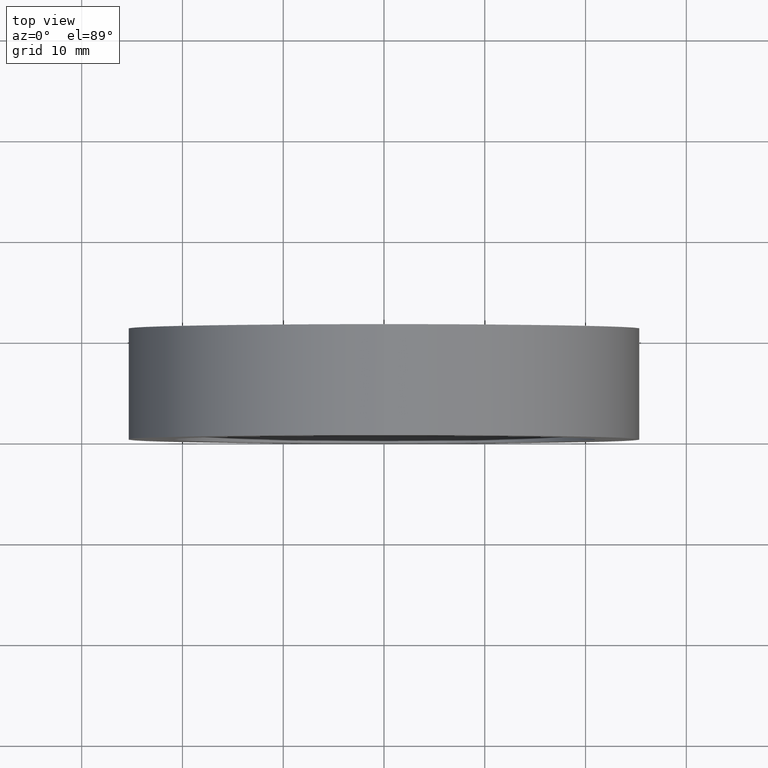
[diagram: clean part render]
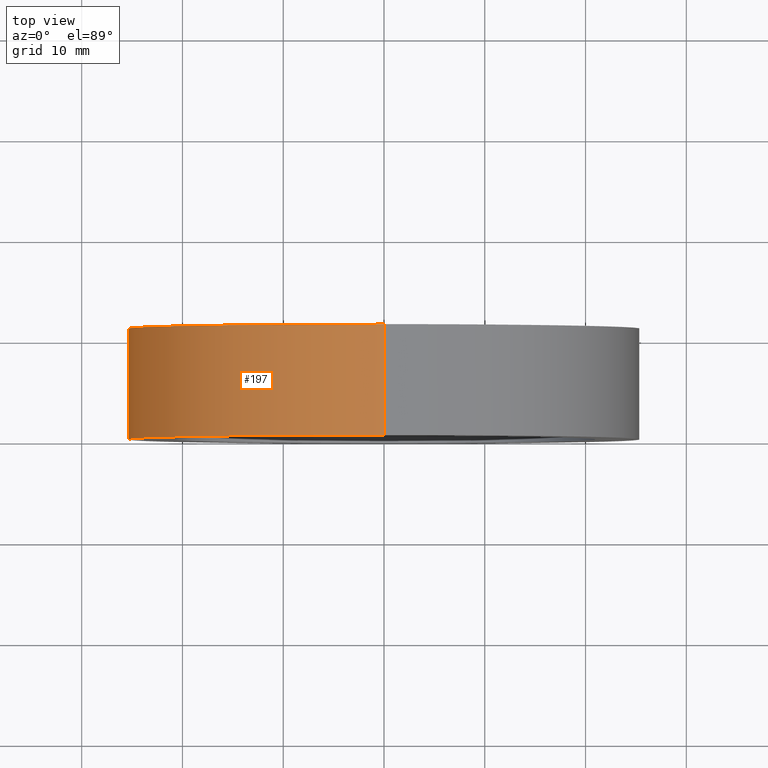
[diagram: same view with one face highlighted and labeled with its STEP entity id]
A machine part, top view. The second image highlights one B-rep face of the part: STEP entity #197.
In plain terms, the highlighted cylindrical surface (partial cylindrical patch) has radius 25.4 mm, axis along (-0, -1, -0).
Its self-contained STEP definition (entity closure, byte-faithful):
#7 = CARTESIAN_POINT ( 'NONE',  ( 3.110602869834276865E-15, 0.000000000000000000, 25.39999999999999858 ) ) ;
#8 = EDGE_CURVE ( 'NONE', #88, #152, #375, .T. ) ;
#16 = EDGE_LOOP ( 'NONE', ( #196, #164, #145, #95 ) ) ;
#30 = EDGE_CURVE ( 'NONE', #66, #152, #42, .T. ) ;
#32 = CARTESIAN_POINT ( 'NONE',  ( 0.000000000000000000, 10.99999999999999645, 0.000000000000000000 ) ) ;
#42 = CIRCLE ( 'NONE', #147, 25.39999999999999503 ) ;
#43 = CARTESIAN_POINT ( 'NONE',  ( 0.000000000000000000, 0.000000000000000000, 0.000000000000000000 ) ) ;
#62 = EDGE_CURVE ( 'NONE', #334, #88, #173, .T. ) ;
#66 = VERTEX_POINT ( 'NONE', #161 ) ;
#73 = CARTESIAN_POINT ( 'NONE',  ( 0.000000000000000000, -5.551145924324170024E-17, -25.39999999999999503 ) ) ;
#88 = VERTEX_POINT ( 'NONE', #102 ) ;
#95 = ORIENTED_EDGE ( 'NONE', *, *, #30, .F. ) ;
#102 = CARTESIAN_POINT ( 'NONE',  ( 0.000000000000000000, 10.99999999999999645, -25.39999999999999858 ) ) ;
#119 = EDGE_CURVE ( 'NONE', #334, #66, #170, .T. ) ;
#140 = DIRECTION ( 'NONE',  ( -0.000000000000000000, -1.000000000000000000, -0.000000000000000000 ) ) ;
#141 = CYLINDRICAL_SURFACE ( 'NONE', #384, 25.39999999999999858 ) ;
#145 = ORIENTED_EDGE ( 'NONE', *, *, #8, .T. ) ;
#147 = AXIS2_PLACEMENT_3D ( 'NONE', #342, #374, #346 ) ;
#152 = VERTEX_POINT ( 'NONE', #73 ) ;
#161 = CARTESIAN_POINT ( 'NONE',  ( 3.110602869834276471E-15, -5.551145924324170024E-17, 25.39999999999999503 ) ) ;
#164 = ORIENTED_EDGE ( 'NONE', *, *, #62, .T. ) ;
#170 = LINE ( 'NONE', #7, #200 ) ;
#173 = CIRCLE ( 'NONE', #272, 25.39999999999999858 ) ;
#186 = DIRECTION ( 'NONE',  ( -0.000000000000000000, -1.000000000000000000, -0.000000000000000000 ) ) ;
#196 = ORIENTED_EDGE ( 'NONE', *, *, #119, .F. ) ;
#197 = ADVANCED_FACE ( 'NONE', ( #326 ), #141, .T. ) ;
#200 = VECTOR ( 'NONE', #140, 1000.000000000000000 ) ;
#225 = DIRECTION ( 'NONE',  ( -0.000000000000000000, -1.000000000000000000, -0.000000000000000000 ) ) ;
#250 = DIRECTION ( 'NONE',  ( 0.000000000000000000, 0.000000000000000000, -1.000000000000000000 ) ) ;
#264 = DIRECTION ( 'NONE',  ( -0.000000000000000000, -1.000000000000000000, -0.000000000000000000 ) ) ;
#267 = DIRECTION ( 'NONE',  ( 0.000000000000000000, 0.000000000000000000, -1.000000000000000000 ) ) ;
#272 = AXIS2_PLACEMENT_3D ( 'NONE', #32, #225, #250 ) ;
#316 = VECTOR ( 'NONE', #186, 1000.000000000000000 ) ;
#326 = FACE_OUTER_BOUND ( 'NONE', #16, .T. ) ;
#334 = VERTEX_POINT ( 'NONE', #364 ) ;
#342 = CARTESIAN_POINT ( 'NONE',  ( 0.000000000000000000, -5.551145924324170024E-17, 0.000000000000000000 ) ) ;
#346 = DIRECTION ( 'NONE',  ( 0.000000000000000000, 0.000000000000000000, -1.000000000000000000 ) ) ;
#364 = CARTESIAN_POINT ( 'NONE',  ( 3.110602869834276865E-15, 10.99999999999999645, 25.39999999999999858 ) ) ;
#374 = DIRECTION ( 'NONE',  ( -0.000000000000000000, -1.000000000000000000, -0.000000000000000000 ) ) ;
#375 = LINE ( 'NONE', #406, #316 ) ;
#384 = AXIS2_PLACEMENT_3D ( 'NONE', #43, #264, #267 ) ;
#406 = CARTESIAN_POINT ( 'NONE',  ( 0.000000000000000000, 0.000000000000000000, -25.39999999999999858 ) ) ;